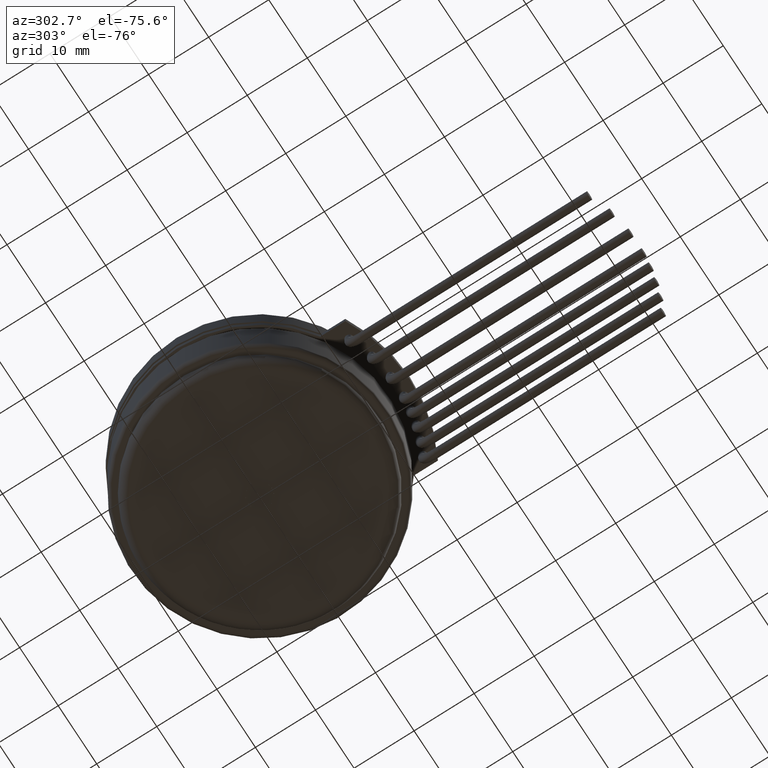
[diagram: clean part render]
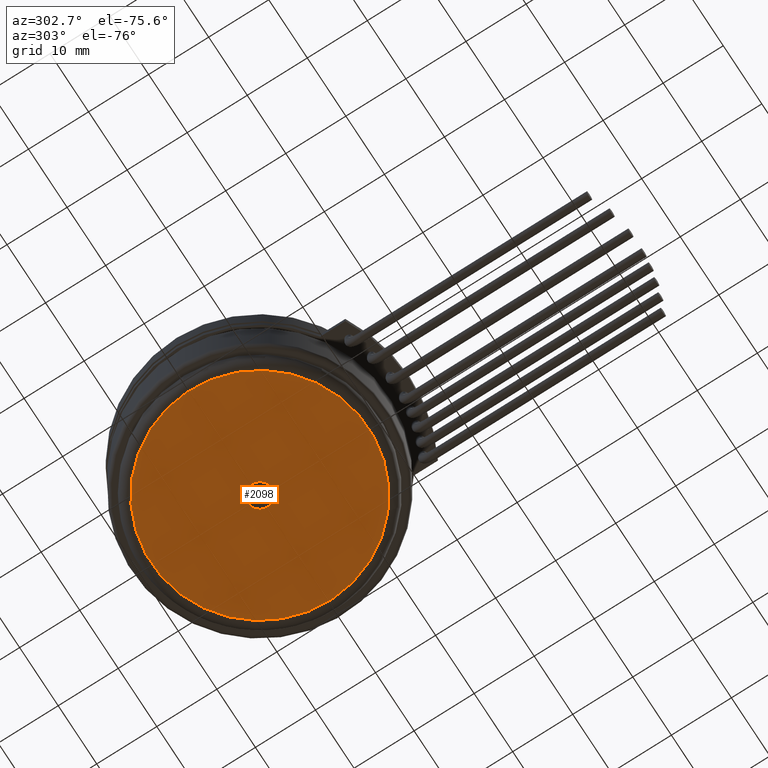
[diagram: same view with one face highlighted and labeled with its STEP entity id]
A machine part, auxiliary view. The second image highlights one B-rep face of the part: STEP entity #2098.
In plain terms, the highlighted planar face has unit normal (-0, 0, 1).
Its self-contained STEP definition (entity closure, byte-faithful):
#1956=CARTESIAN_POINT('',(2.0,2.449294E-016,-2.0));
#1957=VERTEX_POINT('',#1956);
#1958=CARTESIAN_POINT('',(0.0,0.0,-2.0));
#1959=DIRECTION('',(0.0,0.0,1.0));
#1960=DIRECTION('',(-1.0,0.0,0.0));
#1961=AXIS2_PLACEMENT_3D('',#1958,#1959,#1960);
#1962=CIRCLE('',#1961,2.0);
#1963=EDGE_CURVE('',#1957,#1957,#1962,.T.);
#2052=CARTESIAN_POINT('',(-18.100000000000001,-2.216611E-015,-2.0));
#2053=VERTEX_POINT('',#2052);
#2054=CARTESIAN_POINT('',(0.0,0.0,-2.0));
#2055=DIRECTION('',(0.0,0.0,1.0));
#2056=DIRECTION('',(1.0,0.0,0.0));
#2057=AXIS2_PLACEMENT_3D('',#2054,#2055,#2056);
#2058=CIRCLE('',#2057,18.100000000000001);
#2059=EDGE_CURVE('',#2053,#2053,#2058,.T.);
#2087=CARTESIAN_POINT('',(0.0,0.0,-2.0));
#2088=DIRECTION('',(0.0,0.0,1.0));
#2089=DIRECTION('',(1.0,0.0,0.0));
#2090=AXIS2_PLACEMENT_3D('',#2087,#2088,#2089);
#2091=PLANE('',#2090);
#2092=ORIENTED_EDGE('',*,*,#2059,.F.);
#2093=EDGE_LOOP('',(#2092));
#2094=FACE_OUTER_BOUND('',#2093,.T.);
#2095=ORIENTED_EDGE('',*,*,#1963,.T.);
#2096=EDGE_LOOP('',(#2095));
#2097=FACE_BOUND('',#2096,.T.);
#2098=ADVANCED_FACE('',(#2094,#2097),#2091,.F.);